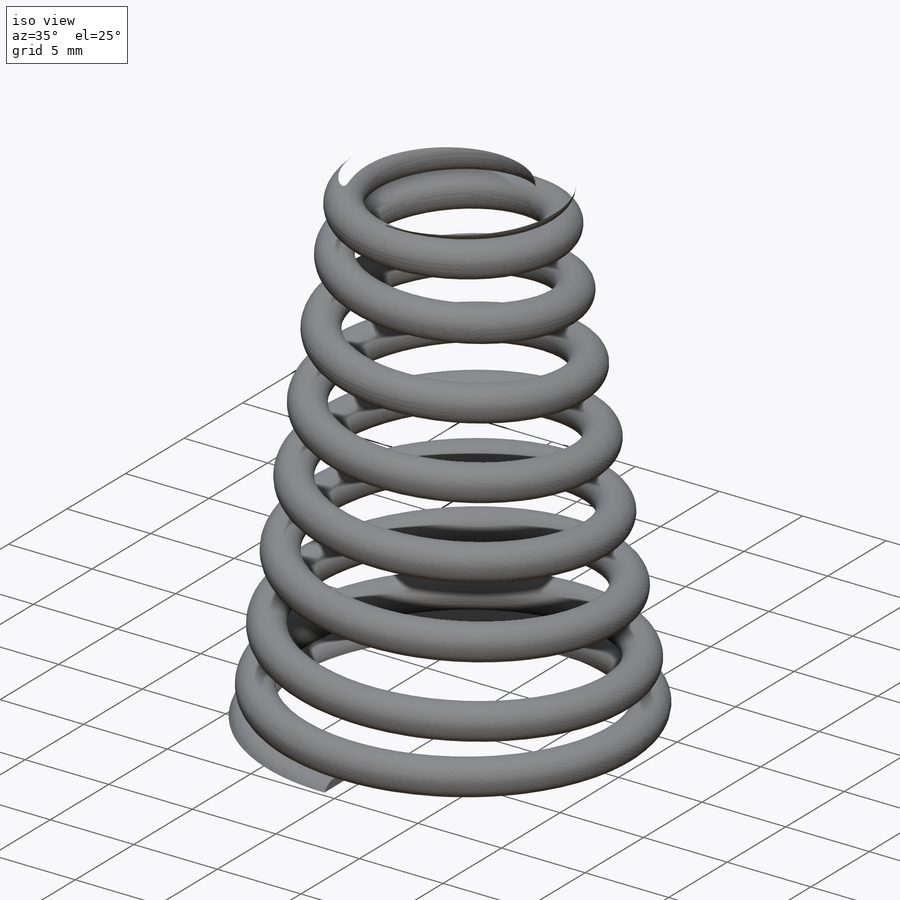
[diagram: iso view]
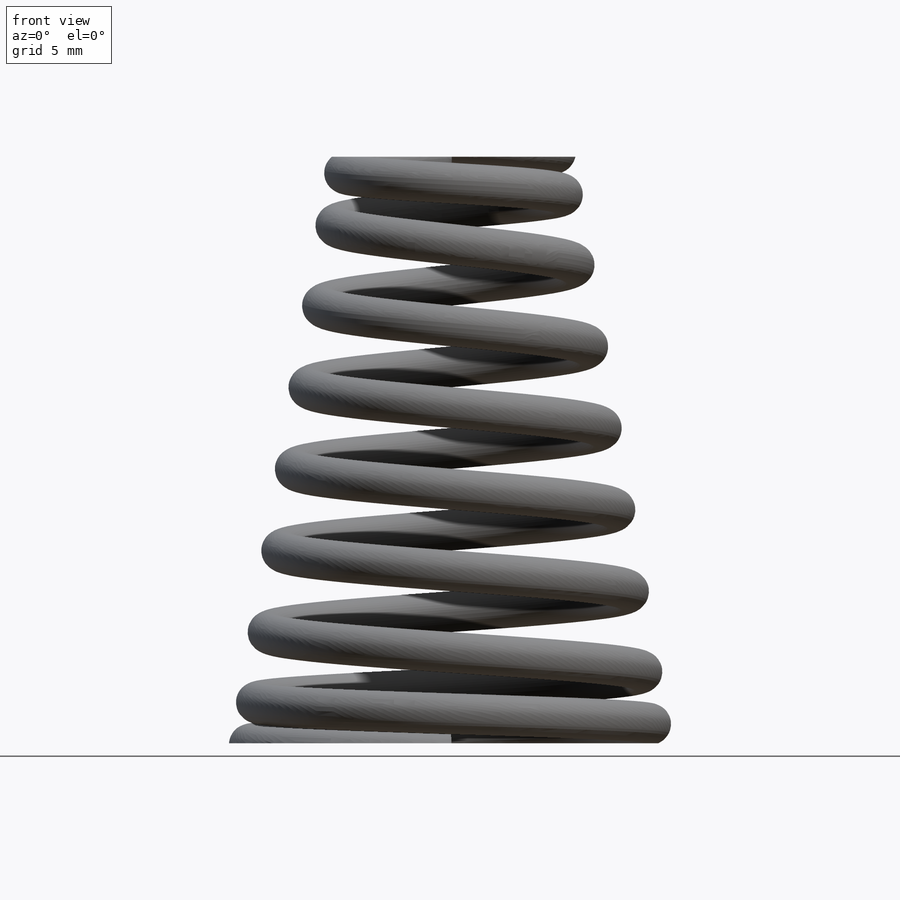
[diagram: front view]
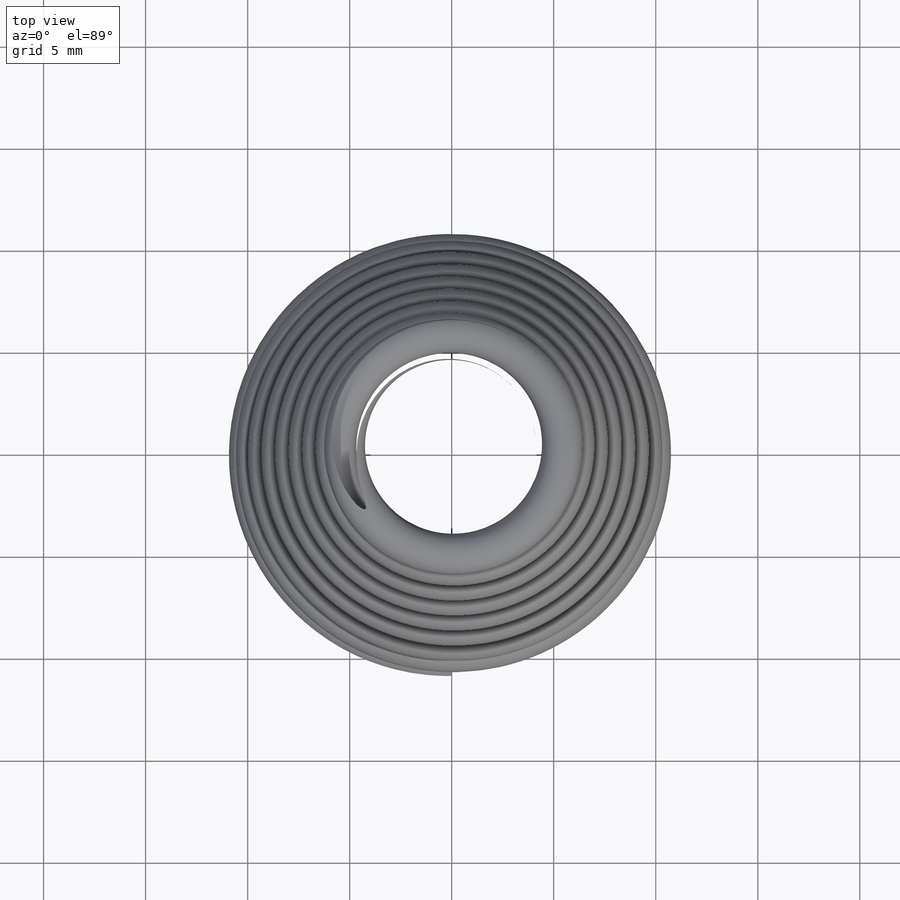
[diagram: top view]
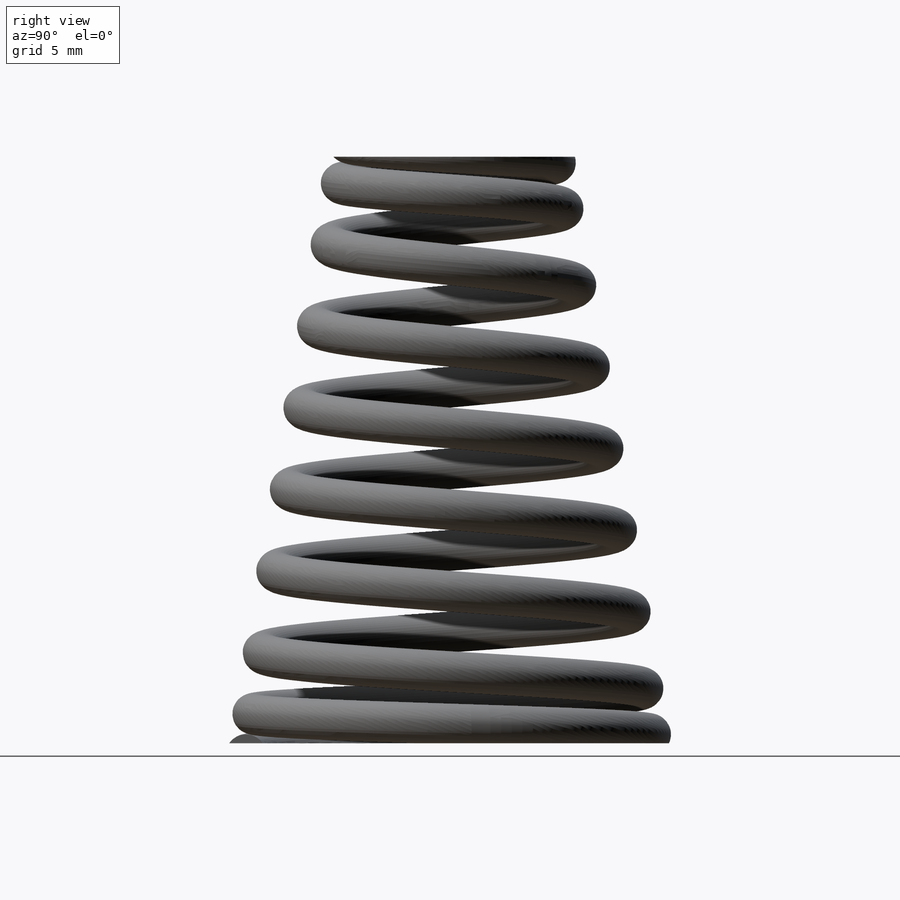
[diagram: right view]
SOLIDWORKS PART (.sldprt)
format: sldprt  version: not decoded by parser v0  size: 2,042,880 bytes
history: native  units: mm
features: sketch x6, plane x3, material x1, helix x1, delete_body x1, sweep x1, cut_extrude x1 (+10 scaffold rows collapsed)
feature tree (24):
  scaffold x10  (default folders/planes/origin — collapsed)
  material  "1.8159 (51CrV4)"
  plane  "Ebene vorne"
  plane  "Ebene oben"
  plane  "Ebene rechts"
  sketch  "Skizze1"  dims[c1.D1=~119.247331mm c2.D1=20.0mm]
  helix  "Spirale/Helix1"  Pitch=2mm
  sketch  "Skizze2"
  sketch  "Skizze3"  dims[c1.D1=10.0mm c1.D2=5.0mm c2.D1=~6283.185307mm]
  sketch  "3D-Skizze1"  dims[D1=~30.423652mm]
  delete_body  "Körper-Löschen1"
  sketch  "Skizze4"  dims[D1=2.0mm]
  sweep  "Austragung2"
  sketch  "Skizze9"
  cut_extrude  "Schnitt-Linear austragen3"  [1 undecoded]
decode coverage: 5 of 10 modeling features carry decoded parameters
note: ~ marks probable driven/reference dimensions
note: 1 parameter value undecoded
note: suppression state not decoded; provenance and decode notes live in map.json
